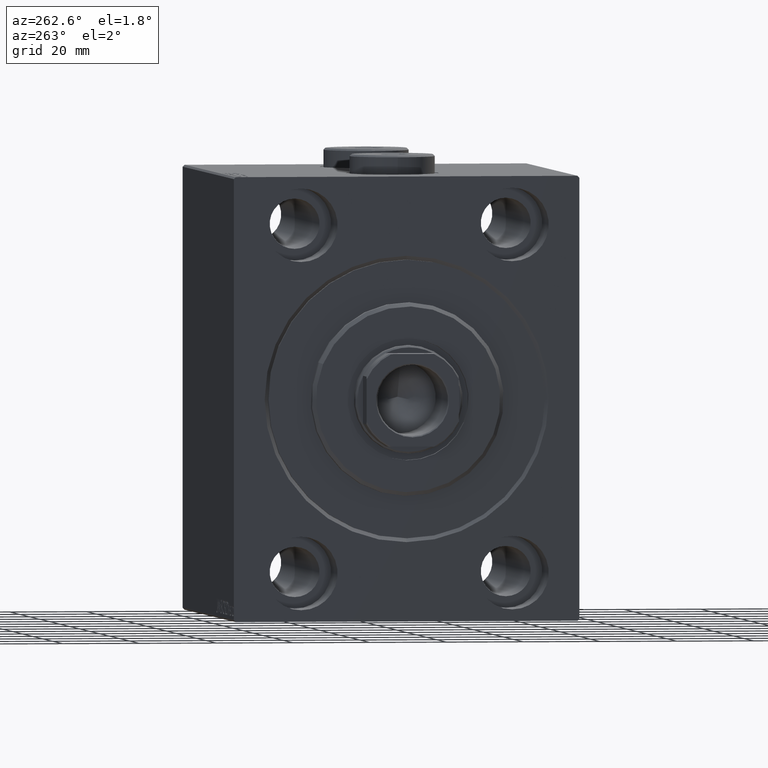
[diagram: clean part render]
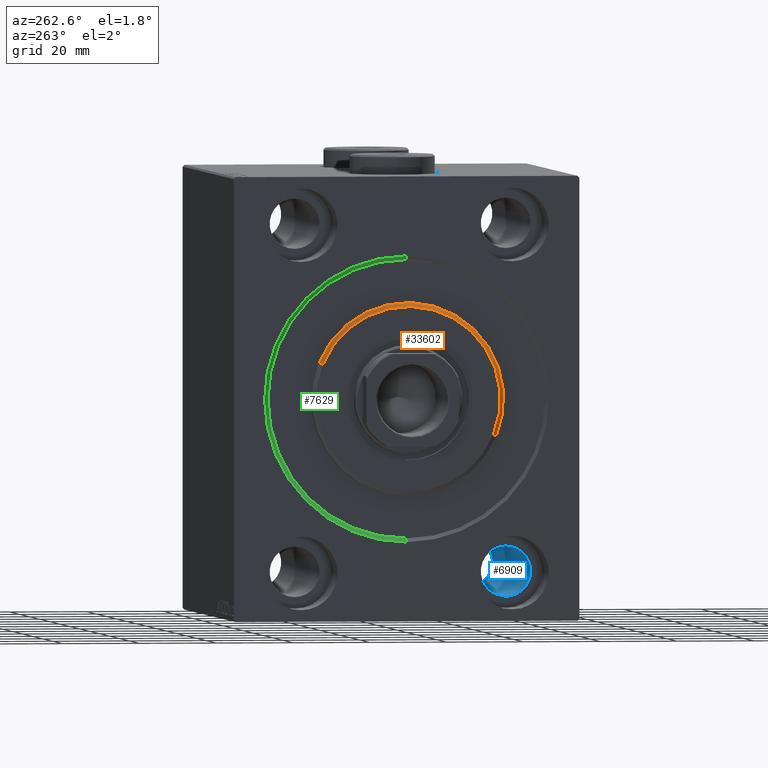
[diagram: same view with three faces highlighted in distinct colors, each labeled with its STEP entity id]
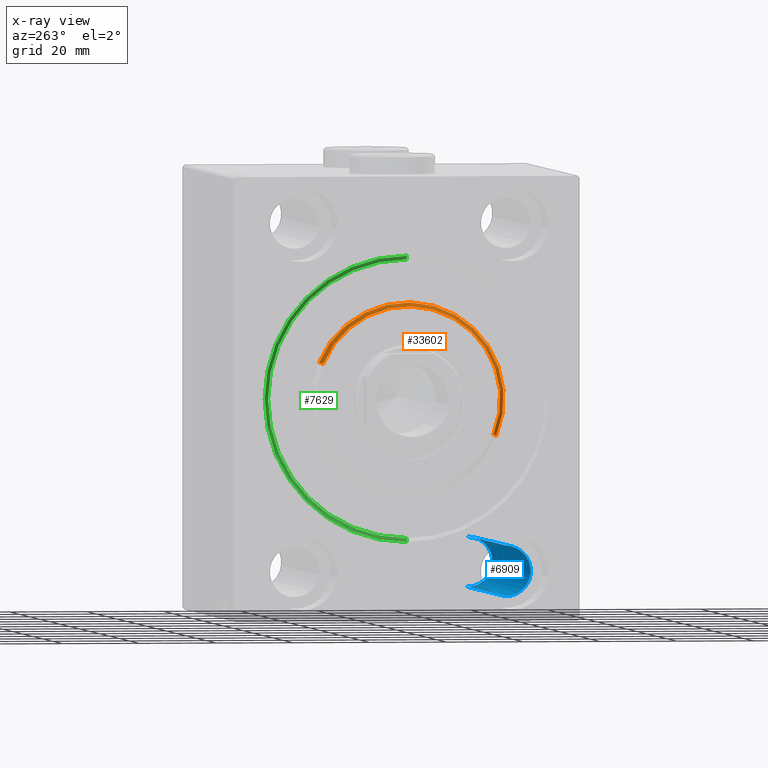
[diagram: x-ray of the same camera — body ghosted, the three highlighted faces saturated]
A machine part, auxiliary view with three faces highlighted in distinct colors.
The next image is the same camera in x-ray (body ghosted, the three faces saturated) — at least one of them is partly hidden behind the body in this view.
Their STEP definitions:

[orange] entity #33602 — the highlighted conical surface has half-angle 45 deg.
#250 = CARTESIAN_POINT ( 'NONE',  ( 3.000000000000000000, 2.939152317953651839E-15, -24.00000000000003553 ) ) ;
#307 = AXIS2_PLACEMENT_3D ( 'NONE', #18400, #39381, #22705 ) ;
#2291 = CARTESIAN_POINT ( 'NONE',  ( 2.000000000000030198, 0.000000000000000000, 25.00000000000000000 ) ) ;
#3852 = DIRECTION ( 'NONE',  ( -1.000000000000000000, 0.000000000000000000, 0.000000000000000000 ) ) ;
#4170 = EDGE_CURVE ( 'NONE', #24862, #31957, #31496, .T. ) ;
#7410 = CIRCLE ( 'NONE', #32897, 24.00000000000003553 ) ;
#9574 = VERTEX_POINT ( 'NONE', #2291 ) ;
#9838 = DIRECTION ( 'NONE',  ( 1.000000000000000000, -0.000000000000000000, 0.000000000000000000 ) ) ;
#11584 = EDGE_CURVE ( 'NONE', #31995, #9574, #17847, .T. ) ;
#15457 = CARTESIAN_POINT ( 'NONE',  ( 3.000000000000000000, 0.000000000000000000, 24.00000000000003553 ) ) ;
#17691 = AXIS2_PLACEMENT_3D ( 'NONE', #39201, #3852, #24603 ) ;
#17847 = LINE ( 'NONE', #34944, #21088 ) ;
#18400 = CARTESIAN_POINT ( 'NONE',  ( 3.000000000000000000, 0.000000000000000000, 0.000000000000000000 ) ) ;
#18432 = ORIENTED_EDGE ( 'NONE', *, *, #11584, .T. ) ;
#20462 = ORIENTED_EDGE ( 'NONE', *, *, #26349, .F. ) ;
#21088 = VECTOR ( 'NONE', #35175, 999.9999999999998863 ) ;
#21183 = ORIENTED_EDGE ( 'NONE', *, *, #4170, .F. ) ;
#22705 = DIRECTION ( 'NONE',  ( 0.000000000000000000, 0.000000000000000000, 1.000000000000000000 ) ) ;
#24603 = DIRECTION ( 'NONE',  ( 0.000000000000000000, 0.000000000000000000, -1.000000000000000000 ) ) ;
#24862 = VERTEX_POINT ( 'NONE', #41173 ) ;
#26125 = FACE_OUTER_BOUND ( 'NONE', #40041, .T. ) ;
#26349 = EDGE_CURVE ( 'NONE', #31957, #9574, #43908, .T. ) ;
#28714 = ORIENTED_EDGE ( 'NONE', *, *, #42332, .F. ) ;
#29412 = VECTOR ( 'NONE', #41997, 999.9999999999998863 ) ;
#29443 = CONICAL_SURFACE ( 'NONE', #307, 24.00000000000003553, 0.7853981633974465026 ) ;
#31496 = LINE ( 'NONE', #250, #29412 ) ;
#31957 = VERTEX_POINT ( 'NONE', #36882 ) ;
#31995 = VERTEX_POINT ( 'NONE', #15457 ) ;
#32897 = AXIS2_PLACEMENT_3D ( 'NONE', #41100, #9838, #37655 ) ;
#33602 = ADVANCED_FACE ( 'NONE', ( #26125 ), #29443, .T. ) ;
#34944 = CARTESIAN_POINT ( 'NONE',  ( 3.000000000000000000, 0.000000000000000000, 24.00000000000003553 ) ) ;
#35175 = DIRECTION ( 'NONE',  ( -0.7071067811865489050, 0.000000000000000000, 0.7071067811865462405 ) ) ;
#36882 = CARTESIAN_POINT ( 'NONE',  ( 2.000000000000030198, 3.061616997868383043E-15, -25.00000000000000000 ) ) ;
#37655 = DIRECTION ( 'NONE',  ( 0.000000000000000000, 0.000000000000000000, -1.000000000000000000 ) ) ;
#39201 = CARTESIAN_POINT ( 'NONE',  ( 2.000000000000030198, 0.000000000000000000, 0.000000000000000000 ) ) ;
#39381 = DIRECTION ( 'NONE',  ( -1.000000000000000000, 0.000000000000000000, 0.000000000000000000 ) ) ;
#40041 = EDGE_LOOP ( 'NONE', ( #21183, #28714, #18432, #20462 ) ) ;
#41100 = CARTESIAN_POINT ( 'NONE',  ( 3.000000000000000000, 0.000000000000000000, 0.000000000000000000 ) ) ;
#41173 = CARTESIAN_POINT ( 'NONE',  ( 3.000000000000000000, 3.000384657911017441E-15, -24.00000000000003553 ) ) ;
#41997 = DIRECTION ( 'NONE',  ( -0.7071067811865489050, 8.659560562354918067E-17, -0.7071067811865462405 ) ) ;
#42332 = EDGE_CURVE ( 'NONE', #31995, #24862, #7410, .T. ) ;
#43908 = CIRCLE ( 'NONE', #17691, 25.00000000000000000 ) ;

[blue] entity #6909 — the highlighted cylindrical surface (edge-blend (fillet) strip) has radius 6.5 mm, axis along (-1, -0, -0).
#47 = EDGE_CURVE ( 'NONE', #12612, #5134, #24912, .T. ) ;
#532 = FACE_OUTER_BOUND ( 'NONE', #36951, .T. ) ;
#1042 = CARTESIAN_POINT ( 'NONE',  ( 12.99999999999999822, -27.50000000000000000, -44.99999999999998579 ) ) ;
#1729 = VECTOR ( 'NONE', #37262, 1000.000000000000000 ) ;
#1879 = CARTESIAN_POINT ( 'NONE',  ( 90.00000000000000000, -27.50000000000000000, -51.49999999999998579 ) ) ;
#4571 = DIRECTION ( 'NONE',  ( -1.000000000000000000, -0.000000000000000000, -0.000000000000000000 ) ) ;
#5098 = EDGE_CURVE ( 'NONE', #25882, #12612, #28528, .T. ) ;
#5134 = VERTEX_POINT ( 'NONE', #18039 ) ;
#6909 = ADVANCED_FACE ( 'NONE', ( #532 ), #17415, .F. ) ;
#10579 = CARTESIAN_POINT ( 'NONE',  ( 103.0000000000000000, -27.50000000000000000, -44.99999999999998579 ) ) ;
#11694 = DIRECTION ( 'NONE',  ( -1.000000000000000000, -0.000000000000000000, -0.000000000000000000 ) ) ;
#12612 = VERTEX_POINT ( 'NONE', #14927 ) ;
#12645 = ORIENTED_EDGE ( 'NONE', *, *, #5098, .T. ) ;
#13543 = ORIENTED_EDGE ( 'NONE', *, *, #28933, .F. ) ;
#13635 = VECTOR ( 'NONE', #4571, 1000.000000000000000 ) ;
#14841 = CARTESIAN_POINT ( 'NONE',  ( 103.0000000000000000, -27.50000000000000000, -51.49999999999998579 ) ) ;
#14927 = CARTESIAN_POINT ( 'NONE',  ( 12.99999999999999822, -27.50000000000000000, -51.49999999999998579 ) ) ;
#16882 = EDGE_CURVE ( 'NONE', #25882, #27314, #37122, .T. ) ;
#17415 = CYLINDRICAL_SURFACE ( 'NONE', #18023, 6.499999999999999112 ) ;
#18023 = AXIS2_PLACEMENT_3D ( 'NONE', #10579, #42055, #25154 ) ;
#18039 = CARTESIAN_POINT ( 'NONE',  ( 12.99999999999999822, -27.50000000000000000, -38.49999999999998579 ) ) ;
#18092 = CARTESIAN_POINT ( 'NONE',  ( 90.00000000000000000, -27.50000000000000000, -44.99999999999998579 ) ) ;
#23262 = ORIENTED_EDGE ( 'NONE', *, *, #47, .T. ) ;
#24912 = CIRCLE ( 'NONE', #29281, 6.499999999999999112 ) ;
#25154 = DIRECTION ( 'NONE',  ( 0.000000000000000000, 0.000000000000000000, 1.000000000000000000 ) ) ;
#25368 = DIRECTION ( 'NONE',  ( 0.000000000000000000, 0.000000000000000000, -1.000000000000000000 ) ) ;
#25882 = VERTEX_POINT ( 'NONE', #1879 ) ;
#27314 = VERTEX_POINT ( 'NONE', #31314 ) ;
#28528 = LINE ( 'NONE', #14841, #13635 ) ;
#28933 = EDGE_CURVE ( 'NONE', #27314, #5134, #34296, .T. ) ;
#29281 = AXIS2_PLACEMENT_3D ( 'NONE', #1042, #39808, #32960 ) ;
#31314 = CARTESIAN_POINT ( 'NONE',  ( 90.00000000000000000, -27.50000000000000000, -38.49999999999998579 ) ) ;
#32960 = DIRECTION ( 'NONE',  ( 0.000000000000000000, 0.000000000000000000, 1.000000000000000000 ) ) ;
#34296 = LINE ( 'NONE', #44811, #1729 ) ;
#36380 = ORIENTED_EDGE ( 'NONE', *, *, #16882, .F. ) ;
#36951 = EDGE_LOOP ( 'NONE', ( #36380, #12645, #23262, #13543 ) ) ;
#37122 = CIRCLE ( 'NONE', #42954, 6.499999999999999112 ) ;
#37262 = DIRECTION ( 'NONE',  ( -1.000000000000000000, -0.000000000000000000, -0.000000000000000000 ) ) ;
#39808 = DIRECTION ( 'NONE',  ( -1.000000000000000000, 0.000000000000000000, 0.000000000000000000 ) ) ;
#42055 = DIRECTION ( 'NONE',  ( -1.000000000000000000, -0.000000000000000000, -0.000000000000000000 ) ) ;
#42954 = AXIS2_PLACEMENT_3D ( 'NONE', #18092, #11694, #25368 ) ;
#44811 = CARTESIAN_POINT ( 'NONE',  ( 103.0000000000000000, -27.50000000000000000, -38.49999999999998579 ) ) ;

[green] entity #7629 — the highlighted conical surface has half-angle 45 deg.
#41 = CARTESIAN_POINT ( 'NONE',  ( 0.000000000000000000, 0.000000000000000000, 0.000000000000000000 ) ) ;
#396 = CARTESIAN_POINT ( 'NONE',  ( 0.000000000000000000, 4.531193156845210737E-15, -37.00000000000003553 ) ) ;
#3535 = ORIENTED_EDGE ( 'NONE', *, *, #39657, .F. ) ;
#3654 = AXIS2_PLACEMENT_3D ( 'NONE', #41, #28100, #38142 ) ;
#4885 = EDGE_CURVE ( 'NONE', #18330, #25164, #38150, .T. ) ;
#4961 = CARTESIAN_POINT ( 'NONE',  ( 0.9999999999999940048, 0.000000000000000000, 0.000000000000000000 ) ) ;
#6773 = CARTESIAN_POINT ( 'NONE',  ( 0.000000000000000000, 0.000000000000000000, 37.00000000000003553 ) ) ;
#7629 = ADVANCED_FACE ( 'NONE', ( #32113 ), #19519, .F. ) ;
#8031 = DIRECTION ( 'NONE',  ( -0.7071067811865326957, 8.659560562355114050E-17, -0.7071067811865622277 ) ) ;
#9811 = DIRECTION ( 'NONE',  ( -0.7071067811865326957, 0.000000000000000000, 0.7071067811865622277 ) ) ;
#12515 = EDGE_LOOP ( 'NONE', ( #3535, #13810, #13658, #31838 ) ) ;
#13658 = ORIENTED_EDGE ( 'NONE', *, *, #24203, .T. ) ;
#13810 = ORIENTED_EDGE ( 'NONE', *, *, #4885, .F. ) ;
#14567 = EDGE_CURVE ( 'NONE', #18408, #43419, #29056, .T. ) ;
#14651 = CARTESIAN_POINT ( 'NONE',  ( 0.9999999999999940048, 4.408728476930470856E-15, -36.00000000000000000 ) ) ;
#14880 = LINE ( 'NONE', #14651, #21156 ) ;
#15157 = AXIS2_PLACEMENT_3D ( 'NONE', #4961, #39192, #31899 ) ;
#18330 = VERTEX_POINT ( 'NONE', #30964 ) ;
#18408 = VERTEX_POINT ( 'NONE', #396 ) ;
#18471 = AXIS2_PLACEMENT_3D ( 'NONE', #25159, #39970, #39756 ) ;
#19519 = CONICAL_SURFACE ( 'NONE', #15157, 36.00000000000000000, 0.7853981633974691512 ) ;
#20561 = VECTOR ( 'NONE', #9811, 1000.000000000000114 ) ;
#21156 = VECTOR ( 'NONE', #8031, 1000.000000000000114 ) ;
#23033 = LINE ( 'NONE', #27144, #20561 ) ;
#24203 = EDGE_CURVE ( 'NONE', #18330, #43419, #23033, .T. ) ;
#25159 = CARTESIAN_POINT ( 'NONE',  ( 0.9999999999999940048, 0.000000000000000000, 0.000000000000000000 ) ) ;
#25164 = VERTEX_POINT ( 'NONE', #34924 ) ;
#27144 = CARTESIAN_POINT ( 'NONE',  ( 0.9999999999999940048, 0.000000000000000000, 36.00000000000000000 ) ) ;
#28100 = DIRECTION ( 'NONE',  ( 1.000000000000000000, 0.000000000000000000, 0.000000000000000000 ) ) ;
#29056 = CIRCLE ( 'NONE', #3654, 37.00000000000003553 ) ;
#30964 = CARTESIAN_POINT ( 'NONE',  ( 0.9999999999999940048, 0.000000000000000000, 36.00000000000000000 ) ) ;
#31838 = ORIENTED_EDGE ( 'NONE', *, *, #14567, .F. ) ;
#31899 = DIRECTION ( 'NONE',  ( 0.000000000000000000, 0.000000000000000000, 1.000000000000000000 ) ) ;
#32113 = FACE_OUTER_BOUND ( 'NONE', #12515, .T. ) ;
#34924 = CARTESIAN_POINT ( 'NONE',  ( 0.9999999999999940048, 4.408728476930470856E-15, -36.00000000000000000 ) ) ;
#38142 = DIRECTION ( 'NONE',  ( 0.000000000000000000, 0.000000000000000000, -1.000000000000000000 ) ) ;
#38150 = CIRCLE ( 'NONE', #18471, 36.00000000000000000 ) ;
#39192 = DIRECTION ( 'NONE',  ( -1.000000000000000000, 0.000000000000000000, 0.000000000000000000 ) ) ;
#39657 = EDGE_CURVE ( 'NONE', #25164, #18408, #14880, .T. ) ;
#39756 = DIRECTION ( 'NONE',  ( 0.000000000000000000, 0.000000000000000000, -1.000000000000000000 ) ) ;
#39970 = DIRECTION ( 'NONE',  ( -1.000000000000000000, 0.000000000000000000, 0.000000000000000000 ) ) ;
#43419 = VERTEX_POINT ( 'NONE', #6773 ) ;